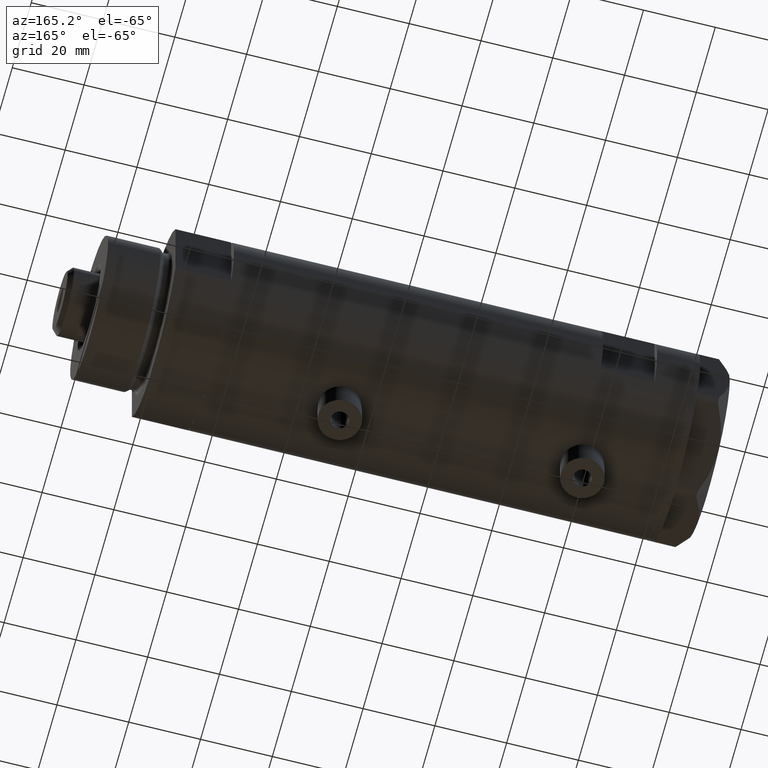
[diagram: clean part render]
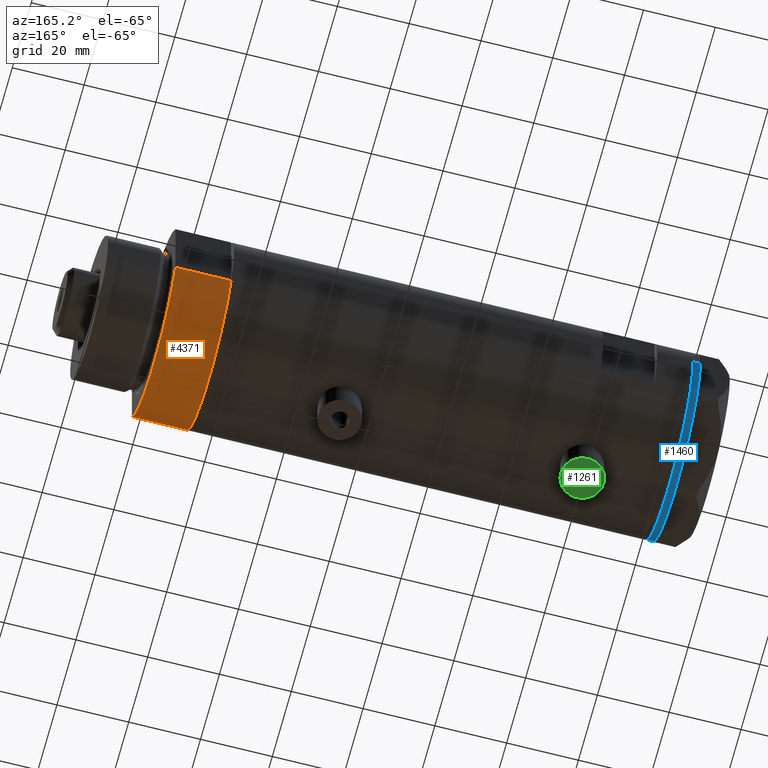
[diagram: same view with three faces highlighted in distinct colors, each labeled with its STEP entity id]
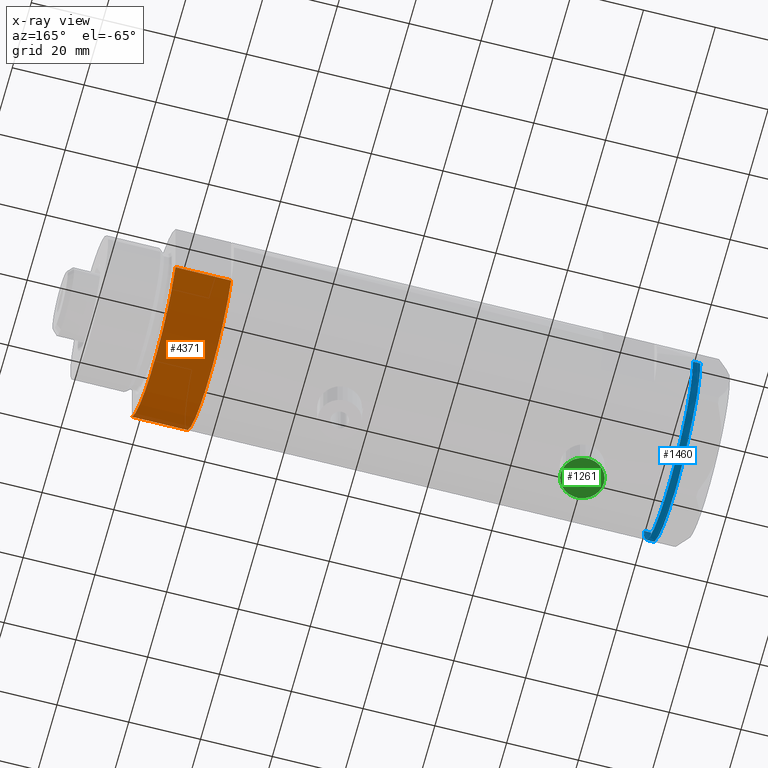
[diagram: x-ray of the same camera — body ghosted, the three highlighted faces saturated]
A machine part, auxiliary view with three faces highlighted in distinct colors.
The next image is the same camera in x-ray (body ghosted, the three faces saturated) — at least one of them is partly hidden behind the body in this view.
Their STEP definitions:

[orange] entity #4371 — the highlighted cylindrical surface (partial cylindrical patch) has radius 26 mm, axis along (-1, -0, 0).
#138 = DIRECTION ( 'NONE',  ( -1.000000000000000000, 0.000000000000000000, 0.000000000000000000 ) ) ;
#185 = ORIENTED_EDGE ( 'NONE', *, *, #3073, .T. ) ;
#335 = CARTESIAN_POINT ( 'NONE',  ( 12.12435565298215323, 23.00000000000000355, 0.000000000000000000 ) ) ;
#342 = AXIS2_PLACEMENT_3D ( 'NONE', #2771, #5192, #1122 ) ;
#356 = VERTEX_POINT ( 'NONE', #5174 ) ;
#567 = DIRECTION ( 'NONE',  ( 0.000000000000000000, 0.000000000000000000, 1.000000000000000000 ) ) ;
#734 = CARTESIAN_POINT ( 'NONE',  ( 12.12435565298214790, 23.00000000000000355, 15.50000000000000000 ) ) ;
#979 = EDGE_LOOP ( 'NONE', ( #4038, #5190, #185, #2486 ) ) ;
#988 = CARTESIAN_POINT ( 'NONE',  ( 0.000000000000000000, 0.000000000000000000, 15.50000000000000000 ) ) ;
#1025 = LINE ( 'NONE', #1387, #5063 ) ;
#1046 = VERTEX_POINT ( 'NONE', #734 ) ;
#1122 = DIRECTION ( 'NONE',  ( 1.000000000000000000, 0.000000000000000000, 0.000000000000000000 ) ) ;
#1387 = CARTESIAN_POINT ( 'NONE',  ( 12.12435565298215323, -22.99999999999999645, 0.000000000000000000 ) ) ;
#1562 = AXIS2_PLACEMENT_3D ( 'NONE', #988, #3731, #138 ) ;
#1934 = EDGE_CURVE ( 'NONE', #2138, #1046, #2196, .T. ) ;
#2098 = CARTESIAN_POINT ( 'NONE',  ( 12.12435565298215323, -22.99999999999999645, 15.50000000000000000 ) ) ;
#2138 = VERTEX_POINT ( 'NONE', #2098 ) ;
#2165 = DIRECTION ( 'NONE',  ( -0.000000000000000000, -0.000000000000000000, 1.000000000000000000 ) ) ;
#2196 = CIRCLE ( 'NONE', #342, 26.00000000000000355 ) ;
#2486 = ORIENTED_EDGE ( 'NONE', *, *, #4167, .T. ) ;
#2769 = VERTEX_POINT ( 'NONE', #5056 ) ;
#2771 = CARTESIAN_POINT ( 'NONE',  ( 0.000000000000000000, 0.000000000000000000, 15.50000000000000000 ) ) ;
#2885 = DIRECTION ( 'NONE',  ( 1.000000000000000000, 0.000000000000000000, 0.000000000000000000 ) ) ;
#2912 = FACE_OUTER_BOUND ( 'NONE', #979, .T. ) ;
#2956 = AXIS2_PLACEMENT_3D ( 'NONE', #3797, #567, #2885 ) ;
#3048 = LINE ( 'NONE', #335, #4928 ) ;
#3073 = EDGE_CURVE ( 'NONE', #356, #2769, #4560, .T. ) ;
#3564 = EDGE_CURVE ( 'NONE', #356, #2138, #1025, .T. ) ;
#3731 = DIRECTION ( 'NONE',  ( -0.000000000000000000, -0.000000000000000000, -1.000000000000000000 ) ) ;
#3797 = CARTESIAN_POINT ( 'NONE',  ( 0.000000000000000000, 0.000000000000000000, 0.000000000000000000 ) ) ;
#4038 = ORIENTED_EDGE ( 'NONE', *, *, #1934, .F. ) ;
#4167 = EDGE_CURVE ( 'NONE', #2769, #1046, #3048, .T. ) ;
#4274 = DIRECTION ( 'NONE',  ( -0.000000000000000000, -0.000000000000000000, 1.000000000000000000 ) ) ;
#4371 = ADVANCED_FACE ( 'NONE', ( #2912 ), #4579, .T. ) ;
#4560 = CIRCLE ( 'NONE', #2956, 26.00000000000000355 ) ;
#4579 = CYLINDRICAL_SURFACE ( 'NONE', #1562, 26.00000000000000355 ) ;
#4928 = VECTOR ( 'NONE', #4274, 1000.000000000000000 ) ;
#5056 = CARTESIAN_POINT ( 'NONE',  ( 12.12435565298214080, 23.00000000000000355, 0.000000000000000000 ) ) ;
#5063 = VECTOR ( 'NONE', #2165, 1000.000000000000000 ) ;
#5174 = CARTESIAN_POINT ( 'NONE',  ( 12.12435565298215323, -22.99999999999999645, 0.000000000000000000 ) ) ;
#5190 = ORIENTED_EDGE ( 'NONE', *, *, #3564, .F. ) ;
#5192 = DIRECTION ( 'NONE',  ( 0.000000000000000000, 0.000000000000000000, 1.000000000000000000 ) ) ;

[blue] entity #1460 — the highlighted cylindrical surface (partial cylindrical patch) has radius 26 mm, axis along (-1, -0, 0).
#35 = B_SPLINE_CURVE_WITH_KNOTS ( 'NONE', 3,
 ( #1293, #4972, #2076, #4894 ),
 .UNSPECIFIED., .F., .F.,
 ( 4, 4 ),
 ( 0.000000000000000000, 1.000000000000000000 ),
 .UNSPECIFIED. ) ;
#79 = EDGE_CURVE ( 'NONE', #2117, #372, #3693, .T. ) ;
#123 = CIRCLE ( 'NONE', #535, 26.00000000000000355 ) ;
#143 = DIRECTION ( 'NONE',  ( 0.000000000000000000, 0.000000000000000000, -1.000000000000000000 ) ) ;
#169 = LINE ( 'NONE', #4639, #5042 ) ;
#206 = VERTEX_POINT ( 'NONE', #628 ) ;
#214 = VERTEX_POINT ( 'NONE', #4701 ) ;
#224 = CARTESIAN_POINT ( 'NONE',  ( 0.000000000000000000, 0.000000000000000000, 0.000000000000000000 ) ) ;
#239 = DIRECTION ( 'NONE',  ( 0.000000000000000000, 0.000000000000000000, -1.000000000000000000 ) ) ;
#250 = CARTESIAN_POINT ( 'NONE',  ( 22.46498481720465179, 13.09076325594772960, 0.000000000000000000 ) ) ;
#255 = ORIENTED_EDGE ( 'NONE', *, *, #1405, .T. ) ;
#271 = AXIS2_PLACEMENT_3D ( 'NONE', #224, #3037, #2173 ) ;
#281 = CIRCLE ( 'NONE', #4813, 26.00000000000000355 ) ;
#372 = VERTEX_POINT ( 'NONE', #834 ) ;
#420 = ORIENTED_EDGE ( 'NONE', *, *, #553, .T. ) ;
#491 = ORIENTED_EDGE ( 'NONE', *, *, #3936, .T. ) ;
#503 = CARTESIAN_POINT ( 'NONE',  ( -22.46498481720481877, 13.09076325594744006, 0.000000000000000000 ) ) ;
#535 = AXIS2_PLACEMENT_3D ( 'NONE', #2728, #4327, #3905 ) ;
#553 = EDGE_CURVE ( 'NONE', #4660, #214, #5031, .T. ) ;
#619 = CARTESIAN_POINT ( 'NONE',  ( 0.000000000000000000, 0.000000000000000000, 0.000000000000000000 ) ) ;
#628 = CARTESIAN_POINT ( 'NONE',  ( -26.00000000000000355, 3.184081677783118585E-15, 0.000000000000000000 ) ) ;
#748 = CARTESIAN_POINT ( 'NONE',  ( 0.000000000000000000, 0.000000000000000000, 0.000000000000000000 ) ) ;
#782 = CARTESIAN_POINT ( 'NONE',  ( -26.00000000000000355, 3.184081677783118585E-15, -2.000000000000000000 ) ) ;
#815 = DIRECTION ( 'NONE',  ( 0.000000000000000000, 0.000000000000000000, -1.000000000000000000 ) ) ;
#827 = VERTEX_POINT ( 'NONE', #782 ) ;
#834 = CARTESIAN_POINT ( 'NONE',  ( 26.00000000000000355, 0.000000000000000000, 0.000000000000000000 ) ) ;
#846 = ORIENTED_EDGE ( 'NONE', *, *, #3347, .T. ) ;
#901 = EDGE_LOOP ( 'NONE', ( #3275, #255, #4753, #3154, #491, #3866, #2617, #846, #4006, #4743, #3406, #420, #4823, #1851, #2473, #3083 ) ) ;
#913 = CARTESIAN_POINT ( 'NONE',  ( -22.67167229899207115, 12.72773645103935003, 0.000000000000000000 ) ) ;
#940 = CARTESIAN_POINT ( 'NONE',  ( 26.00000000000000355, 0.000000000000000000, -2.000000000000000000 ) ) ;
#969 = CARTESIAN_POINT ( 'NONE',  ( 0.000000000000000000, 0.000000000000000000, -2.000000000000000000 ) ) ;
#982 = CARTESIAN_POINT ( 'NONE',  ( 22.56942594318079642, 12.90986591935734218, 0.000000000000000000 ) ) ;
#1027 = FACE_OUTER_BOUND ( 'NONE', #901, .T. ) ;
#1030 = AXIS2_PLACEMENT_3D ( 'NONE', #969, #143, #4173 ) ;
#1116 = CARTESIAN_POINT ( 'NONE',  ( 0.3132930502238189252, 25.99811238272274139, 0.000000000000000000 ) ) ;
#1200 = AXIS2_PLACEMENT_3D ( 'NONE', #1810, #239, #2143 ) ;
#1254 = EDGE_CURVE ( 'NONE', #206, #4198, #2357, .T. ) ;
#1293 = CARTESIAN_POINT ( 'NONE',  ( -0.3132930502240048320, 25.99811238272273783, 0.000000000000000000 ) ) ;
#1353 = DIRECTION ( 'NONE',  ( -1.000000000000000000, 0.000000000000000000, 0.000000000000000000 ) ) ;
#1405 = EDGE_CURVE ( 'NONE', #827, #206, #169, .T. ) ;
#1451 = DIRECTION ( 'NONE',  ( 0.000000000000000000, 0.000000000000000000, -1.000000000000000000 ) ) ;
#1460 = ADVANCED_FACE ( 'NONE', ( #1027 ), #2167, .T. ) ;
#1560 = EDGE_CURVE ( 'NONE', #3189, #372, #2409, .T. ) ;
#1589 = CARTESIAN_POINT ( 'NONE',  ( 26.00000000000000355, 0.000000000000000000, -2.000000000000000000 ) ) ;
#1708 = CARTESIAN_POINT ( 'NONE',  ( -22.67167229899207115, 12.72773645103935003, 0.000000000000000000 ) ) ;
#1709 = B_SPLINE_CURVE_WITH_KNOTS ( 'NONE', 3,
 ( #2645, #250, #982, #1848 ),
 .UNSPECIFIED., .F., .F.,
 ( 4, 4 ),
 ( 0.000000000000000000, 1.000000000000000000 ),
 .UNSPECIFIED. ) ;
#1729 = EDGE_CURVE ( 'NONE', #4840, #4917, #35, .T. ) ;
#1760 = DIRECTION ( 'NONE',  ( 1.000000000000000000, 0.000000000000000000, 0.000000000000000000 ) ) ;
#1810 = CARTESIAN_POINT ( 'NONE',  ( 0.000000000000000000, 0.000000000000000000, 0.000000000000000000 ) ) ;
#1836 = AXIS2_PLACEMENT_3D ( 'NONE', #2425, #2737, #3195 ) ;
#1844 = VERTEX_POINT ( 'NONE', #913 ) ;
#1848 = CARTESIAN_POINT ( 'NONE',  ( 22.67167229899213510, 12.72773645103923990, 0.000000000000000000 ) ) ;
#1851 = ORIENTED_EDGE ( 'NONE', *, *, #3755, .T. ) ;
#1867 = DIRECTION ( 'NONE',  ( -0.000000000000000000, -0.000000000000000000, 1.000000000000000000 ) ) ;
#2037 = DIRECTION ( 'NONE',  ( -1.000000000000000000, 0.000000000000000000, 0.000000000000000000 ) ) ;
#2057 = VERTEX_POINT ( 'NONE', #4805 ) ;
#2076 = CARTESIAN_POINT ( 'NONE',  ( 0.1044411259763403238, 26.00062917530480888, 0.000000000000000000 ) ) ;
#2108 = EDGE_CURVE ( 'NONE', #2322, #2348, #2870, .T. ) ;
#2117 = VERTEX_POINT ( 'NONE', #2545 ) ;
#2143 = DIRECTION ( 'NONE',  ( -1.000000000000000000, 0.000000000000000000, 0.000000000000000000 ) ) ;
#2167 = CYLINDRICAL_SURFACE ( 'NONE', #3376, 26.00000000000000355 ) ;
#2173 = DIRECTION ( 'NONE',  ( -1.000000000000000000, 0.000000000000000000, 0.000000000000000000 ) ) ;
#2217 = DIRECTION ( 'NONE',  ( -0.000000000000000000, -0.000000000000000000, 1.000000000000000000 ) ) ;
#2223 = CARTESIAN_POINT ( 'NONE',  ( -0.9999999999999089617, 25.98076211353316367, 0.000000000000000000 ) ) ;
#2305 = EDGE_CURVE ( 'NONE', #214, #4844, #1709, .T. ) ;
#2322 = VERTEX_POINT ( 'NONE', #3392 ) ;
#2348 = VERTEX_POINT ( 'NONE', #2223 ) ;
#2357 = CIRCLE ( 'NONE', #3109, 26.00000000000000355 ) ;
#2397 = CARTESIAN_POINT ( 'NONE',  ( 0.000000000000000000, 0.000000000000000000, 0.000000000000000000 ) ) ;
#2409 = LINE ( 'NONE', #1589, #4032 ) ;
#2415 = CARTESIAN_POINT ( 'NONE',  ( -22.35837924876937066, 13.27037593168329543, 0.000000000000000000 ) ) ;
#2425 = CARTESIAN_POINT ( 'NONE',  ( 0.000000000000000000, 0.000000000000000000, 0.000000000000000000 ) ) ;
#2440 = DIRECTION ( 'NONE',  ( -1.000000000000000000, 0.000000000000000000, 0.000000000000000000 ) ) ;
#2460 = CIRCLE ( 'NONE', #1200, 26.00000000000000355 ) ;
#2473 = ORIENTED_EDGE ( 'NONE', *, *, #79, .T. ) ;
#2515 = CARTESIAN_POINT ( 'NONE',  ( 0.000000000000000000, 0.000000000000000000, 0.000000000000000000 ) ) ;
#2540 = CIRCLE ( 'NONE', #271, 26.00000000000000355 ) ;
#2545 = CARTESIAN_POINT ( 'NONE',  ( 22.99999999999982592, 12.12435565298247653, 0.000000000000000000 ) ) ;
#2566 = DIRECTION ( 'NONE',  ( 0.000000000000000000, 0.000000000000000000, -1.000000000000000000 ) ) ;
#2617 = ORIENTED_EDGE ( 'NONE', *, *, #2108, .T. ) ;
#2638 = CARTESIAN_POINT ( 'NONE',  ( 0.000000000000000000, 0.000000000000000000, -2.000000000000000000 ) ) ;
#2645 = CARTESIAN_POINT ( 'NONE',  ( 22.35837924876908289, 13.27037593168378216, 0.000000000000000000 ) ) ;
#2728 = CARTESIAN_POINT ( 'NONE',  ( 0.000000000000000000, 0.000000000000000000, 0.000000000000000000 ) ) ;
#2737 = DIRECTION ( 'NONE',  ( 0.000000000000000000, 0.000000000000000000, -1.000000000000000000 ) ) ;
#2846 = CARTESIAN_POINT ( 'NONE',  ( 0.000000000000000000, 0.000000000000000000, 0.000000000000000000 ) ) ;
#2870 = CIRCLE ( 'NONE', #4712, 26.00000000000000355 ) ;
#2907 = DIRECTION ( 'NONE',  ( -1.000000000000000000, 0.000000000000000000, 0.000000000000000000 ) ) ;
#2927 = EDGE_CURVE ( 'NONE', #4198, #1844, #2540, .T. ) ;
#2990 = EDGE_CURVE ( 'NONE', #4917, #4286, #3042, .T. ) ;
#3022 = B_SPLINE_CURVE_WITH_KNOTS ( 'NONE', 3,
 ( #1708, #4102, #503, #2415 ),
 .UNSPECIFIED., .F., .F.,
 ( 4, 4 ),
 ( 0.000000000000000000, 1.000000000000000000 ),
 .UNSPECIFIED. ) ;
#3037 = DIRECTION ( 'NONE',  ( 0.000000000000000000, 0.000000000000000000, -1.000000000000000000 ) ) ;
#3042 = CIRCLE ( 'NONE', #3872, 26.00000000000000355 ) ;
#3066 = DIRECTION ( 'NONE',  ( -1.000000000000000000, 0.000000000000000000, 0.000000000000000000 ) ) ;
#3083 = ORIENTED_EDGE ( 'NONE', *, *, #1560, .F. ) ;
#3090 = CARTESIAN_POINT ( 'NONE',  ( 0.000000000000000000, 0.000000000000000000, 0.000000000000000000 ) ) ;
#3096 = CIRCLE ( 'NONE', #4105, 26.00000000000000355 ) ;
#3100 = AXIS2_PLACEMENT_3D ( 'NONE', #748, #3958, #2440 ) ;
#3109 = AXIS2_PLACEMENT_3D ( 'NONE', #2846, #815, #2037 ) ;
#3128 = CARTESIAN_POINT ( 'NONE',  ( 0.9999999999999297229, 25.98076211353316722, 0.000000000000000000 ) ) ;
#3154 = ORIENTED_EDGE ( 'NONE', *, *, #2927, .T. ) ;
#3189 = VERTEX_POINT ( 'NONE', #940 ) ;
#3195 = DIRECTION ( 'NONE',  ( -1.000000000000000000, 0.000000000000000000, 0.000000000000000000 ) ) ;
#3275 = ORIENTED_EDGE ( 'NONE', *, *, #4044, .F. ) ;
#3347 = EDGE_CURVE ( 'NONE', #2348, #4840, #281, .T. ) ;
#3376 = AXIS2_PLACEMENT_3D ( 'NONE', #2638, #4954, #1760 ) ;
#3392 = CARTESIAN_POINT ( 'NONE',  ( -22.00000000000008171, 13.85640646055089498, 0.000000000000000000 ) ) ;
#3406 = ORIENTED_EDGE ( 'NONE', *, *, #3539, .T. ) ;
#3537 = DIRECTION ( 'NONE',  ( 0.000000000000000000, 0.000000000000000000, -1.000000000000000000 ) ) ;
#3539 = EDGE_CURVE ( 'NONE', #4286, #4660, #2460, .T. ) ;
#3693 = CIRCLE ( 'NONE', #3100, 26.00000000000000355 ) ;
#3755 = EDGE_CURVE ( 'NONE', #4844, #2117, #123, .T. ) ;
#3866 = ORIENTED_EDGE ( 'NONE', *, *, #5047, .T. ) ;
#3869 = DIRECTION ( 'NONE',  ( 0.000000000000000000, 0.000000000000000000, -1.000000000000000000 ) ) ;
#3872 = AXIS2_PLACEMENT_3D ( 'NONE', #619, #3869, #1353 ) ;
#3905 = DIRECTION ( 'NONE',  ( -1.000000000000000000, 0.000000000000000000, 0.000000000000000000 ) ) ;
#3936 = EDGE_CURVE ( 'NONE', #1844, #2057, #3022, .T. ) ;
#3958 = DIRECTION ( 'NONE',  ( 0.000000000000000000, 0.000000000000000000, -1.000000000000000000 ) ) ;
#4006 = ORIENTED_EDGE ( 'NONE', *, *, #1729, .T. ) ;
#4032 = VECTOR ( 'NONE', #1867, 1000.000000000000000 ) ;
#4044 = EDGE_CURVE ( 'NONE', #827, #3189, #5144, .T. ) ;
#4102 = CARTESIAN_POINT ( 'NONE',  ( -22.56942594318084616, 12.90986591935725158, 0.000000000000000000 ) ) ;
#4105 = AXIS2_PLACEMENT_3D ( 'NONE', #2397, #3537, #4717 ) ;
#4173 = DIRECTION ( 'NONE',  ( -1.000000000000000000, 0.000000000000000000, 0.000000000000000000 ) ) ;
#4186 = CARTESIAN_POINT ( 'NONE',  ( 21.99999999999987210, 13.85640646055121827, 0.000000000000000000 ) ) ;
#4198 = VERTEX_POINT ( 'NONE', #4658 ) ;
#4286 = VERTEX_POINT ( 'NONE', #3128 ) ;
#4327 = DIRECTION ( 'NONE',  ( 0.000000000000000000, 0.000000000000000000, -1.000000000000000000 ) ) ;
#4364 = CARTESIAN_POINT ( 'NONE',  ( 22.67167229899213510, 12.72773645103923990, 0.000000000000000000 ) ) ;
#4639 = CARTESIAN_POINT ( 'NONE',  ( -26.00000000000000355, 3.184081677783118585E-15, -2.000000000000000000 ) ) ;
#4658 = CARTESIAN_POINT ( 'NONE',  ( -22.99999999999999289, 12.12435565298215856, 0.000000000000000000 ) ) ;
#4660 = VERTEX_POINT ( 'NONE', #4186 ) ;
#4701 = CARTESIAN_POINT ( 'NONE',  ( 22.35837924876908289, 13.27037593168378216, 0.000000000000000000 ) ) ;
#4712 = AXIS2_PLACEMENT_3D ( 'NONE', #2515, #2566, #2907 ) ;
#4717 = DIRECTION ( 'NONE',  ( -1.000000000000000000, 0.000000000000000000, 0.000000000000000000 ) ) ;
#4743 = ORIENTED_EDGE ( 'NONE', *, *, #2990, .T. ) ;
#4753 = ORIENTED_EDGE ( 'NONE', *, *, #1254, .T. ) ;
#4759 = CARTESIAN_POINT ( 'NONE',  ( -0.3132930502240048320, 25.99811238272273783, 0.000000000000000000 ) ) ;
#4805 = CARTESIAN_POINT ( 'NONE',  ( -22.35837924876937066, 13.27037593168329543, 0.000000000000000000 ) ) ;
#4813 = AXIS2_PLACEMENT_3D ( 'NONE', #3090, #1451, #3066 ) ;
#4823 = ORIENTED_EDGE ( 'NONE', *, *, #2305, .T. ) ;
#4840 = VERTEX_POINT ( 'NONE', #4759 ) ;
#4844 = VERTEX_POINT ( 'NONE', #4364 ) ;
#4894 = CARTESIAN_POINT ( 'NONE',  ( 0.3132930502238189252, 25.99811238272274139, 0.000000000000000000 ) ) ;
#4917 = VERTEX_POINT ( 'NONE', #1116 ) ;
#4954 = DIRECTION ( 'NONE',  ( -0.000000000000000000, -0.000000000000000000, 1.000000000000000000 ) ) ;
#4972 = CARTESIAN_POINT ( 'NONE',  ( -0.1044411259765276462, 26.00062917530480888, 0.000000000000000000 ) ) ;
#5031 = CIRCLE ( 'NONE', #1836, 26.00000000000000355 ) ;
#5042 = VECTOR ( 'NONE', #2217, 1000.000000000000000 ) ;
#5047 = EDGE_CURVE ( 'NONE', #2057, #2322, #3096, .T. ) ;
#5144 = CIRCLE ( 'NONE', #1030, 26.00000000000000355 ) ;

[green] entity #1261 — the highlighted planar face has unit normal (-0, 0, -1).
#97 = DIRECTION ( 'NONE',  ( -1.000000000000000000, 0.000000000000000000, 0.000000000000000000 ) ) ;
#99 = DIRECTION ( 'NONE',  ( 0.000000000000000000, 0.000000000000000000, 1.000000000000000000 ) ) ;
#116 = CIRCLE ( 'NONE', #1106, 2.500000000000002220 ) ;
#118 = VERTEX_POINT ( 'NONE', #1590 ) ;
#172 = ORIENTED_EDGE ( 'NONE', *, *, #2647, .F. ) ;
#379 = ORIENTED_EDGE ( 'NONE', *, *, #2537, .F. ) ;
#461 = DIRECTION ( 'NONE',  ( -1.000000000000000000, 0.000000000000000000, 0.000000000000000000 ) ) ;
#485 = CARTESIAN_POINT ( 'NONE',  ( -33.39999999999999858, 0.000000000000000000, 39.95000000000000284 ) ) ;
#613 = CARTESIAN_POINT ( 'NONE',  ( -33.39999999999999858, 0.000000000000000000, 39.95000000000000284 ) ) ;
#821 = AXIS2_PLACEMENT_3D ( 'NONE', #3941, #1574, #5158 ) ;
#943 = CARTESIAN_POINT ( 'NONE',  ( -33.39999999999999858, 0.000000000000000000, 33.95000000000000995 ) ) ;
#1106 = AXIS2_PLACEMENT_3D ( 'NONE', #4060, #461, #99 ) ;
#1240 = VERTEX_POINT ( 'NONE', #2923 ) ;
#1261 = ADVANCED_FACE ( 'NONE', ( #1716, #4423 ), #3685, .T. ) ;
#1307 = DIRECTION ( 'NONE',  ( 0.000000000000000000, 0.000000000000000000, 1.000000000000000000 ) ) ;
#1343 = ORIENTED_EDGE ( 'NONE', *, *, #4958, .T. ) ;
#1414 = DIRECTION ( 'NONE',  ( 0.000000000000000000, 0.000000000000000000, 1.000000000000000000 ) ) ;
#1470 = EDGE_CURVE ( 'NONE', #118, #1739, #1681, .T. ) ;
#1574 = DIRECTION ( 'NONE',  ( -1.000000000000000000, 0.000000000000000000, 0.000000000000000000 ) ) ;
#1590 = CARTESIAN_POINT ( 'NONE',  ( -33.39999999999999858, 7.347880794884107903E-16, 45.95000000000000284 ) ) ;
#1656 = CARTESIAN_POINT ( 'NONE',  ( -33.39999999999999858, 0.000000000000000000, 39.95000000000000284 ) ) ;
#1681 = CIRCLE ( 'NONE', #4787, 5.999999999999998224 ) ;
#1716 = FACE_BOUND ( 'NONE', #2268, .T. ) ;
#1739 = VERTEX_POINT ( 'NONE', #943 ) ;
#2016 = CARTESIAN_POINT ( 'NONE',  ( -33.39999999999999858, 3.061616997868386099E-16, 37.45000000000000284 ) ) ;
#2033 = VERTEX_POINT ( 'NONE', #2016 ) ;
#2268 = EDGE_LOOP ( 'NONE', ( #172, #379 ) ) ;
#2537 = EDGE_CURVE ( 'NONE', #2033, #1240, #3210, .T. ) ;
#2647 = EDGE_CURVE ( 'NONE', #1240, #2033, #116, .T. ) ;
#2923 = CARTESIAN_POINT ( 'NONE',  ( -33.39999999999999858, 0.000000000000000000, 42.45000000000000995 ) ) ;
#3055 = DIRECTION ( 'NONE',  ( -1.000000000000000000, 0.000000000000000000, 0.000000000000000000 ) ) ;
#3210 = CIRCLE ( 'NONE', #3867, 2.500000000000002220 ) ;
#3293 = AXIS2_PLACEMENT_3D ( 'NONE', #1656, #97, #3309 ) ;
#3309 = DIRECTION ( 'NONE',  ( 0.000000000000000000, 0.000000000000000000, 1.000000000000000000 ) ) ;
#3594 = CIRCLE ( 'NONE', #821, 5.999999999999998224 ) ;
#3685 = PLANE ( 'NONE',  #3293 ) ;
#3819 = EDGE_LOOP ( 'NONE', ( #1343, #4771 ) ) ;
#3867 = AXIS2_PLACEMENT_3D ( 'NONE', #485, #4138, #1307 ) ;
#3941 = CARTESIAN_POINT ( 'NONE',  ( -33.39999999999999858, 0.000000000000000000, 39.95000000000000284 ) ) ;
#4060 = CARTESIAN_POINT ( 'NONE',  ( -33.39999999999999858, 0.000000000000000000, 39.95000000000000284 ) ) ;
#4138 = DIRECTION ( 'NONE',  ( -1.000000000000000000, 0.000000000000000000, 0.000000000000000000 ) ) ;
#4423 = FACE_OUTER_BOUND ( 'NONE', #3819, .T. ) ;
#4771 = ORIENTED_EDGE ( 'NONE', *, *, #1470, .T. ) ;
#4787 = AXIS2_PLACEMENT_3D ( 'NONE', #613, #3055, #1414 ) ;
#4958 = EDGE_CURVE ( 'NONE', #1739, #118, #3594, .T. ) ;
#5158 = DIRECTION ( 'NONE',  ( 0.000000000000000000, 0.000000000000000000, 1.000000000000000000 ) ) ;